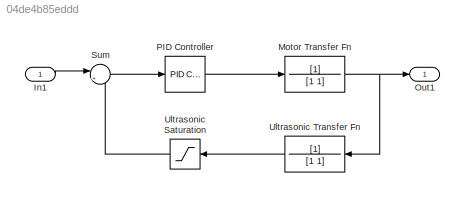
MODEL slx_04de4b85eddd
KIND model
CONFIG AbsTol = auto
CONFIG EnableMultiTasking = off
CONFIG FixedStep = auto
CONFIG MaxStep = auto
CONFIG MinStep = auto
CONFIG RelTol = 1e-3
CONFIG SampleTimeConstraint = Unconstrained
CONFIG Solver = VariableStepAuto
CONFIG SolverName = VariableStepAuto
CONFIG StartTime = 0.0
CONFIG StopTime = 10.0
BLOCK [Inport] In1
  IconDisplay = Port number
BLOCK [TransferFcn] Motor Transfer Fn
  Denominator = [1 1]
BLOCK [Outport] Out1
  IconDisplay = Port number
BLOCK [Reference] PID Controller  REF=simulink/Continuous/PID Controller
  Ports = [1, 1]
  SourceBlock = simulink/Continuous/PID Controller
  SourceProductBaseCode = SL
  SourceProductName = Simulink
  SourceType = PID 1dof
BLOCK [Sum] Sum
  IconShape = round
  InputSameDT = off
  Inputs = |+-
  OutDataTypeStr = Inherit: Inherit via internal rule
  Ports = [2, 1]
  SaturateOnIntegerOverflow = off
BLOCK [Saturate] Ultrasonic Saturation
  InputPortMap = u0
  Ports = [1, 1]
BLOCK [TransferFcn] Ultrasonic Transfer Fn
  Denominator = [1 1]
LINE In1:1 -> Sum:1
NET Motor Transfer Fn:1 -> Out1:1, Ultrasonic Transfer Fn:1
LINE PID Controller:1 -> Motor Transfer Fn:1
LINE Sum:1 -> PID Controller:1
LINE Ultrasonic Saturation:1 -> Sum:2
LINE Ultrasonic Transfer Fn:1 -> Ultrasonic Saturation:1
note: NET lines group one-source signal fan-out (src -> all destinations, sorted); 1:1 wires keep LINE
